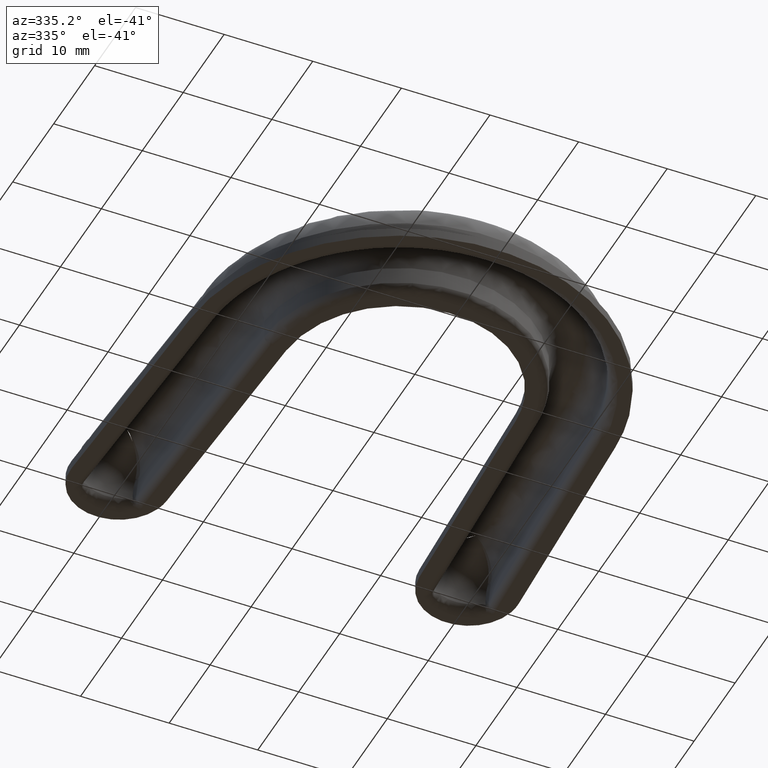
[diagram: clean part render]
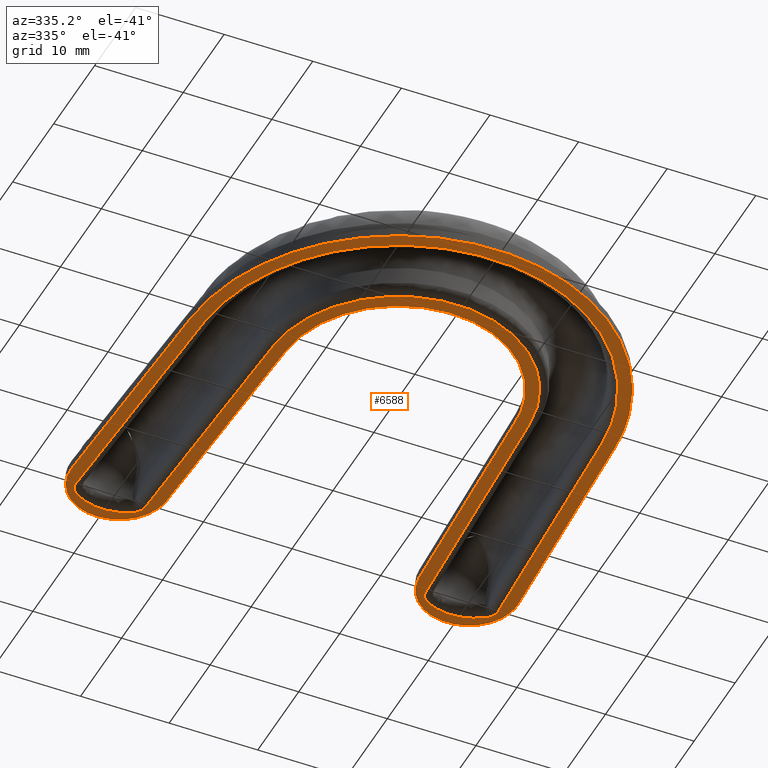
[diagram: same view with one face highlighted and labeled with its STEP entity id]
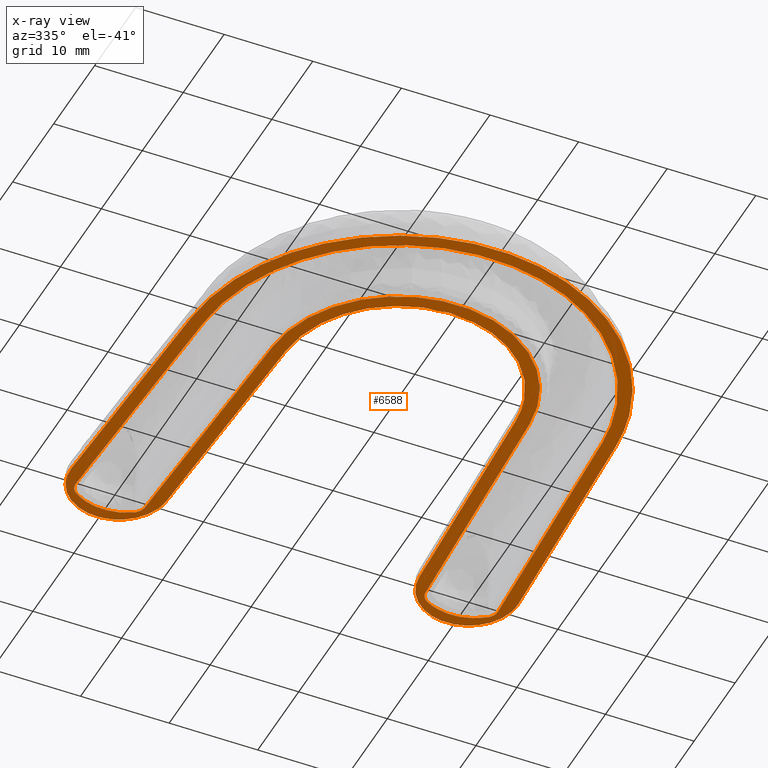
[diagram: x-ray of the same camera — body ghosted, the highlighted face saturated]
A machine part, auxiliary view. The second image highlights one B-rep face of the part: STEP entity #6588.
The next image is the same camera in x-ray: the body ghosted, the highlighted face saturated — about 0% of this face is hidden behind the body in this view.
In plain terms, the highlighted face is a freeform B-spline surface patch.
Its self-contained STEP definition (entity closure, byte-faithful):
#60=CARTESIAN_POINT('',(-15.835031365521550,51.637499143310897,5.816880E-016));
#61=VERTEX_POINT('',#60);
#75=CARTESIAN_POINT('',(-14.483526436991021,23.309015008741401,5.816880E-016));
#76=VERTEX_POINT('',#75);
#77=CARTESIAN_POINT('',(-14.483526436991021,23.309015008741401,5.816880E-016));
#78=CARTESIAN_POINT('',(-15.835031365521550,51.637499143310897,5.816880E-016));
#79=QUASI_UNIFORM_CURVE('',1,(#77,#78),.UNSPECIFIED.,.F.,.U.);
#80=EDGE_CURVE('',#76,#61,#79,.T.);
#128=CARTESIAN_POINT('',(14.483526495229439,23.309015005962902,2.353335E-015));
#129=VERTEX_POINT('',#128);
#161=CARTESIAN_POINT('',(14.483526495229439,23.309015005962902,2.353335E-015));
#162=CARTESIAN_POINT('',(13.824721268489512,9.500000058304739,1.517883E-015));
#163=CARTESIAN_POINT('',(-2.877894E-015,9.500000058304741,1.517883E-015));
#164=CARTESIAN_POINT('',(-13.824721268489553,9.500000058304739,1.517883E-015));
#165=CARTESIAN_POINT('',(-14.483526436991029,23.309015008741401,1.517883E-015));
#173=(BOUNDED_CURVE()B_SPLINE_CURVE(2,(#161,#162,#163,#164,#165),.UNSPECIFIED.,.F.,.U.)B_SPLINE_CURVE_WITH_KNOTS((3,2,3),(0.0,0.500000000000000,1.0),.UNSPECIFIED.)CURVE()GEOMETRIC_REPRESENTATION_ITEM()RATIONAL_B_SPLINE_CURVE((1.0,0.723758985270580,1.0,0.723758985270580,1.0))REPRESENTATION_ITEM(''));
#174=EDGE_CURVE('',#129,#76,#173,.T.);
#198=CARTESIAN_POINT('',(-16.563707034109850,52.853529018570001,5.406699E-016));
#199=VERTEX_POINT('',#198);
#215=CARTESIAN_POINT('',(-15.835031365521560,51.637499143310897,4.336809E-016));
#216=CARTESIAN_POINT('',(-15.873358746952823,52.440867739217971,4.336809E-016));
#217=CARTESIAN_POINT('',(-16.563707034109889,52.853529018569937,4.336809E-016));
#225=(BOUNDED_CURVE()B_SPLINE_CURVE(2,(#215,#216,#217),.UNSPECIFIED.,.F.,.U.)CURVE()GEOMETRIC_REPRESENTATION_ITEM()QUASI_UNIFORM_CURVE()RATIONAL_B_SPLINE_CURVE((1.0,0.881306045498184,1.0))REPRESENTATION_ITEM(''));
#226=EDGE_CURVE('',#61,#199,#225,.T.);
#259=CARTESIAN_POINT('',(15.835031425606051,51.637499179227000,2.518653E-015));
#260=VERTEX_POINT('',#259);
#282=CARTESIAN_POINT('',(15.835031425606051,51.637499179227000,2.518653E-015));
#283=CARTESIAN_POINT('',(14.483526495229439,23.309015005962902,2.353335E-015));
#284=QUASI_UNIFORM_CURVE('',1,(#282,#283),.UNSPECIFIED.,.F.,.U.);
#285=EDGE_CURVE('',#260,#129,#284,.T.);
#309=CARTESIAN_POINT('',(-23.221976334477802,52.518576965469897,1.324678E-016));
#310=VERTEX_POINT('',#309);
#324=CARTESIAN_POINT('',(-16.563707034109871,52.853529018569972,4.336809E-016));
#325=CARTESIAN_POINT('',(-20.004741854956229,54.910435449543748,4.336809E-016));
#326=CARTESIAN_POINT('',(-23.221976334477802,52.518576965469897,4.336809E-016));
#334=(BOUNDED_CURVE()B_SPLINE_CURVE(2,(#324,#325,#326),.UNSPECIFIED.,.F.,.U.)CURVE()GEOMETRIC_REPRESENTATION_ITEM()QUASI_UNIFORM_CURVE()RATIONAL_B_SPLINE_CURVE((1.0,0.831478172718715,1.0))REPRESENTATION_ITEM(''));
#335=EDGE_CURVE('',#199,#310,#334,.T.);
#371=CARTESIAN_POINT('',(16.563707114222549,52.853529066458002,2.566768E-015));
#372=VERTEX_POINT('',#371);
#402=CARTESIAN_POINT('',(16.563707114222531,52.853529066458030,2.602085E-015));
#403=CARTESIAN_POINT('',(15.873358807753130,52.440867790137972,2.602085E-015));
#404=CARTESIAN_POINT('',(15.835031425606060,51.637499179227000,2.602085E-015));
#412=(BOUNDED_CURVE()B_SPLINE_CURVE(2,(#402,#403,#404),.UNSPECIFIED.,.F.,.U.)CURVE()GEOMETRIC_REPRESENTATION_ITEM()QUASI_UNIFORM_CURVE()RATIONAL_B_SPLINE_CURVE((1.0,0.881306041822791,1.0))REPRESENTATION_ITEM(''));
#413=EDGE_CURVE('',#372,#260,#412,.T.);
#437=CARTESIAN_POINT('',(-23.825325029465699,51.243322690926497,9.184548E-017));
#438=VERTEX_POINT('',#437);
#454=CARTESIAN_POINT('',(-23.221976334477819,52.518576965469933,2.168404E-016));
#455=CARTESIAN_POINT('',(-23.863414230645180,52.041698862950483,2.168404E-016));
#456=CARTESIAN_POINT('',(-23.825325029465692,51.243322690926497,2.168404E-016));
#464=(BOUNDED_CURVE()B_SPLINE_CURVE(2,(#454,#455,#456),.UNSPECIFIED.,.F.,.U.)CURVE()GEOMETRIC_REPRESENTATION_ITEM()QUASI_UNIFORM_CURVE()RATIONAL_B_SPLINE_CURVE((1.0,0.882527738784400,1.0))REPRESENTATION_ITEM(''));
#465=EDGE_CURVE('',#310,#438,#464,.T.);
#501=CARTESIAN_POINT('',(23.221976409639950,52.518576909590507,2.973015E-015));
#502=VERTEX_POINT('',#501);
#532=CARTESIAN_POINT('',(23.221976409639939,52.518576909590493,2.818926E-015));
#533=CARTESIAN_POINT('',(20.004741967266614,54.910435444024124,2.818926E-015));
#534=CARTESIAN_POINT('',(16.563707114222559,52.853529066457988,2.818926E-015));
#542=(BOUNDED_CURVE()B_SPLINE_CURVE(2,(#532,#533,#534),.UNSPECIFIED.,.F.,.U.)CURVE()GEOMETRIC_REPRESENTATION_ITEM()QUASI_UNIFORM_CURVE()RATIONAL_B_SPLINE_CURVE((1.0,0.831478172703723,1.0))REPRESENTATION_ITEM(''));
#543=EDGE_CURVE('',#502,#372,#542,.T.);
#564=CARTESIAN_POINT('',(-22.474437606772849,22.927781908583000,9.184548E-017));
#565=VERTEX_POINT('',#564);
#579=CARTESIAN_POINT('',(-23.825325029465699,51.243322690926497,9.184548E-017));
#580=CARTESIAN_POINT('',(-22.474437606772849,22.927781908583000,9.184548E-017));
#581=QUASI_UNIFORM_CURVE('',1,(#579,#580),.UNSPECIFIED.,.F.,.U.);
#582=EDGE_CURVE('',#438,#565,#581,.T.);
#610=CARTESIAN_POINT('',(23.825325085837299,51.243322649016903,3.006195E-015));
#611=VERTEX_POINT('',#610);
#641=CARTESIAN_POINT('',(23.825325085837289,51.243322649016903,3.035766E-015));
#642=CARTESIAN_POINT('',(23.863414286300486,52.041698806026588,3.035766E-015));
#643=CARTESIAN_POINT('',(23.221976409639939,52.518576909590493,3.035766E-015));
#651=(BOUNDED_CURVE()B_SPLINE_CURVE(2,(#641,#642,#643),.UNSPECIFIED.,.F.,.U.)CURVE()GEOMETRIC_REPRESENTATION_ITEM()QUASI_UNIFORM_CURVE()RATIONAL_B_SPLINE_CURVE((1.0,0.882527742454707,1.0))REPRESENTATION_ITEM(''));
#652=EDGE_CURVE('',#611,#502,#651,.T.);
#682=CARTESIAN_POINT('',(22.474437606772849,22.927781908582951,2.840953E-015));
#683=VERTEX_POINT('',#682);
#697=CARTESIAN_POINT('',(-22.474437606772831,22.927781908583000,1.517883E-015));
#698=CARTESIAN_POINT('',(-21.452153723153806,1.500000058304745,1.517883E-015));
#699=CARTESIAN_POINT('',(-2.877894E-015,1.500000058304748,1.517883E-015));
#700=CARTESIAN_POINT('',(21.452153723153739,1.500000058304745,1.517883E-015));
#701=CARTESIAN_POINT('',(22.474437606772820,22.927781908582951,1.517883E-015));
#709=(BOUNDED_CURVE()B_SPLINE_CURVE(2,(#697,#698,#699,#700,#701),.UNSPECIFIED.,.F.,.U.)B_SPLINE_CURVE_WITH_KNOTS((3,2,3),(0.0,0.500000000000000,1.0),.UNSPECIFIED.)CURVE()GEOMETRIC_REPRESENTATION_ITEM()RATIONAL_B_SPLINE_CURVE((1.0,0.723758985270579,1.0,0.723758985270579,1.0))REPRESENTATION_ITEM(''));
#710=EDGE_CURVE('',#565,#683,#709,.T.);
#746=CARTESIAN_POINT('',(22.474437606772849,22.927781908582951,2.840953E-015));
#747=CARTESIAN_POINT('',(23.825325085837299,51.243322649016903,3.006195E-015));
#748=QUASI_UNIFORM_CURVE('',1,(#746,#747),.UNSPECIFIED.,.F.,.U.);
#749=EDGE_CURVE('',#683,#611,#748,.T.);
#5757=CARTESIAN_POINT('',(-25.231653953539549,49.244150814416102,0.0));
#5758=VERTEX_POINT('',#5757);
#5809=CARTESIAN_POINT('',(-14.244151095089400,49.768346327133898,6.735335E-016));
#5810=VERTEX_POINT('',#5809);
#5816=CARTESIAN_POINT('',(-25.231653953539539,49.244150814416102,0.0));
#5817=CARTESIAN_POINT('',(-25.382976163727346,52.415969680940037,0.0));
#5818=CARTESIAN_POINT('',(-22.711761554208760,54.132927992381461,0.0));
#5819=CARTESIAN_POINT('',(-20.040546944690153,55.849886303822878,0.0));
#5820=CARTESIAN_POINT('',(-17.218010124983760,54.395025748740359,0.0));
#5821=CARTESIAN_POINT('',(-14.395473305277367,52.940165193657855,0.0));
#5822=CARTESIAN_POINT('',(-14.244151095089400,49.768346327133898,6.735335E-016));
#5830=(BOUNDED_CURVE()B_SPLINE_CURVE(2,(#5816,#5817,#5818,#5819,#5820,#5821,#5822),.UNSPECIFIED.,.F.,.U.)B_SPLINE_CURVE_WITH_KNOTS((3,2,2,3),(0.0,0.333333333333333,0.666666666666667,1.0),.UNSPECIFIED.)CURVE()GEOMETRIC_REPRESENTATION_ITEM()RATIONAL_B_SPLINE_CURVE((1.0,0.866025403784439,1.0,0.866025403784439,1.0,0.866025403784439,1.0))REPRESENTATION_ITEM(''));
#5831=EDGE_CURVE('',#5758,#5810,#5830,.T.);
#5856=CARTESIAN_POINT('',(14.244151107969660,49.768346326519399,6.735335E-016));
#5857=VERTEX_POINT('',#5856);
#5908=CARTESIAN_POINT('',(25.231653953539801,49.244150814416102,0.0));
#5909=VERTEX_POINT('',#5908);
#5915=CARTESIAN_POINT('',(14.244151107969660,49.768346326519399,6.735335E-016));
#5916=CARTESIAN_POINT('',(14.395473363515631,52.940165190879391,0.0));
#5917=CARTESIAN_POINT('',(17.218010183222042,54.395025745961952,0.0));
#5918=CARTESIAN_POINT('',(20.040547002928449,55.849886301044492,0.0));
#5919=CARTESIAN_POINT('',(22.711761612447059,54.132927989603061,0.0));
#5920=CARTESIAN_POINT('',(25.382976221965684,52.415969678161616,0.0));
#5921=CARTESIAN_POINT('',(25.231653953539801,49.244150814416102,0.0));
#5929=(BOUNDED_CURVE()B_SPLINE_CURVE(2,(#5915,#5916,#5917,#5918,#5919,#5920,#5921),.UNSPECIFIED.,.F.,.U.)B_SPLINE_CURVE_WITH_KNOTS((3,2,2,3),(0.0,0.333333333333333,0.666666666666667,1.0),.UNSPECIFIED.)CURVE()GEOMETRIC_REPRESENTATION_ITEM()RATIONAL_B_SPLINE_CURVE((1.0,0.866025403784437,1.0,0.866025403784437,1.0,0.866025403784437,1.0))REPRESENTATION_ITEM(''));
#5930=EDGE_CURVE('',#5857,#5909,#5929,.T.);
#6072=CARTESIAN_POINT('',(12.985230650895261,23.380496212242601,6.735335E-016));
#6073=VERTEX_POINT('',#6072);
#6079=CARTESIAN_POINT('',(-12.985230592656860,23.380496215021100,6.735335E-016));
#6080=VERTEX_POINT('',#6079);
#6081=CARTESIAN_POINT('',(-12.985230592656860,23.380496215021090,6.735335E-016));
#6082=CARTESIAN_POINT('',(-12.394577683239921,11.000000058304842,6.735335E-016));
#6083=CARTESIAN_POINT('',(-2.559888E-014,11.000000058304821,6.735335E-016));
#6084=CARTESIAN_POINT('',(12.394577683239877,11.000000058304797,6.735335E-016));
#6085=CARTESIAN_POINT('',(12.985230650895261,23.380496212242601,6.735335E-016));
#6093=(BOUNDED_CURVE()B_SPLINE_CURVE(2,(#6081,#6082,#6083,#6084,#6085),.UNSPECIFIED.,.F.,.U.)B_SPLINE_CURVE_WITH_KNOTS((3,2,3),(0.0,0.500000000000000,1.0),.UNSPECIFIED.)CURVE()GEOMETRIC_REPRESENTATION_ITEM()RATIONAL_B_SPLINE_CURVE((1.0,0.723758985270580,1.0,0.723758985270580,1.0))REPRESENTATION_ITEM(''));
#6094=EDGE_CURVE('',#6080,#6073,#6093,.T.);
#6311=CARTESIAN_POINT('',(-23.972733451107000,22.856300702303301,0.0));
#6312=VERTEX_POINT('',#6311);
#6318=CARTESIAN_POINT('',(23.972733509345399,22.856300699524802,0.0));
#6319=VERTEX_POINT('',#6318);
#6320=CARTESIAN_POINT('',(-23.972733451107000,22.856300702303301,0.0));
#6321=CARTESIAN_POINT('',(-22.882297363992809,2.775558E-014,0.0));
#6322=CARTESIAN_POINT('',(-2.765886E-014,0.0,0.0));
#6323=CARTESIAN_POINT('',(22.882297363992752,-1.734723E-014,0.0));
#6324=CARTESIAN_POINT('',(23.972733509345410,22.856300699524802,0.0));
#6332=(BOUNDED_CURVE()B_SPLINE_CURVE(2,(#6320,#6321,#6322,#6323,#6324),.UNSPECIFIED.,.F.,.U.)B_SPLINE_CURVE_WITH_KNOTS((3,2,3),(0.0,0.500000000000000,1.0),.UNSPECIFIED.)CURVE()GEOMETRIC_REPRESENTATION_ITEM()RATIONAL_B_SPLINE_CURVE((1.0,0.723758985270580,1.0,0.723758985270580,1.0))REPRESENTATION_ITEM(''));
#6333=EDGE_CURVE('',#6312,#6319,#6332,.T.);
#6478=CARTESIAN_POINT('',(12.985230650895261,23.380496212242601,6.735335E-016));
#6479=CARTESIAN_POINT('',(14.244151107969660,49.768346326519399,6.735335E-016));
#6480=QUASI_UNIFORM_CURVE('',1,(#6478,#6479),.UNSPECIFIED.,.F.,.U.);
#6481=EDGE_CURVE('',#6073,#5857,#6480,.T.);
#6492=CARTESIAN_POINT('',(23.972733509345399,22.856300699524802,0.0));
#6493=CARTESIAN_POINT('',(25.231653953539801,49.244150814416102,0.0));
#6494=QUASI_UNIFORM_CURVE('',1,(#6492,#6493),.UNSPECIFIED.,.F.,.U.);
#6495=EDGE_CURVE('',#6319,#5909,#6494,.T.);
#6512=CARTESIAN_POINT('',(-14.244151095089400,49.768346327133898,6.735335E-016));
#6513=CARTESIAN_POINT('',(-12.985230592656860,23.380496215021100,6.735335E-016));
#6514=QUASI_UNIFORM_CURVE('',1,(#6512,#6513),.UNSPECIFIED.,.F.,.U.);
#6515=EDGE_CURVE('',#5810,#6080,#6514,.T.);
#6550=CARTESIAN_POINT('',(-25.231653953539549,49.244150814416102,0.0));
#6551=CARTESIAN_POINT('',(-23.972733451107000,22.856300702303301,0.0));
#6552=QUASI_UNIFORM_CURVE('',1,(#6550,#6551),.UNSPECIFIED.,.F.,.U.);
#6553=EDGE_CURVE('',#5758,#6312,#6552,.T.);
#6559=CARTESIAN_POINT('',(-27.752295431686669,-2.747249895224448,0.0));
#6560=CARTESIAN_POINT('',(27.752293626978400,-2.747249895224448,0.0));
#6561=CARTESIAN_POINT('',(-27.752295431686669,57.747251406978698,0.0));
#6562=CARTESIAN_POINT('',(27.752293626978400,57.747251406978698,0.0));
#6563=B_SPLINE_SURFACE_WITH_KNOTS('',1,1,((#6559,#6561),(#6560,#6562)),.UNSPECIFIED.,.F.,.F.,.U.,(2,2),(2,2),(0.0,55.504589058665083),(0.0,60.494501302203147),.UNSPECIFIED.);
#6564=ORIENTED_EDGE('',*,*,#5930,.T.);
#6565=ORIENTED_EDGE('',*,*,#6495,.F.);
#6566=ORIENTED_EDGE('',*,*,#6333,.F.);
#6567=ORIENTED_EDGE('',*,*,#6553,.F.);
#6568=ORIENTED_EDGE('',*,*,#5831,.T.);
#6569=ORIENTED_EDGE('',*,*,#6515,.T.);
#6570=ORIENTED_EDGE('',*,*,#6094,.T.);
#6571=ORIENTED_EDGE('',*,*,#6481,.T.);
#6572=EDGE_LOOP('',(#6564,#6565,#6566,#6567,#6568,#6569,#6570,#6571));
#6573=FACE_OUTER_BOUND('',#6572,.T.);
#6574=ORIENTED_EDGE('',*,*,#174,.T.);
#6575=ORIENTED_EDGE('',*,*,#80,.T.);
#6576=ORIENTED_EDGE('',*,*,#226,.T.);
#6577=ORIENTED_EDGE('',*,*,#335,.T.);
#6578=ORIENTED_EDGE('',*,*,#465,.T.);
#6579=ORIENTED_EDGE('',*,*,#582,.T.);
#6580=ORIENTED_EDGE('',*,*,#710,.T.);
#6581=ORIENTED_EDGE('',*,*,#749,.T.);
#6582=ORIENTED_EDGE('',*,*,#652,.T.);
#6583=ORIENTED_EDGE('',*,*,#543,.T.);
#6584=ORIENTED_EDGE('',*,*,#413,.T.);
#6585=ORIENTED_EDGE('',*,*,#285,.T.);
#6586=EDGE_LOOP('',(#6574,#6575,#6576,#6577,#6578,#6579,#6580,#6581,#6582,#6583,#6584,#6585));
#6587=FACE_BOUND('',#6586,.T.);
#6588=ADVANCED_FACE('',(#6573,#6587),#6563,.F.);